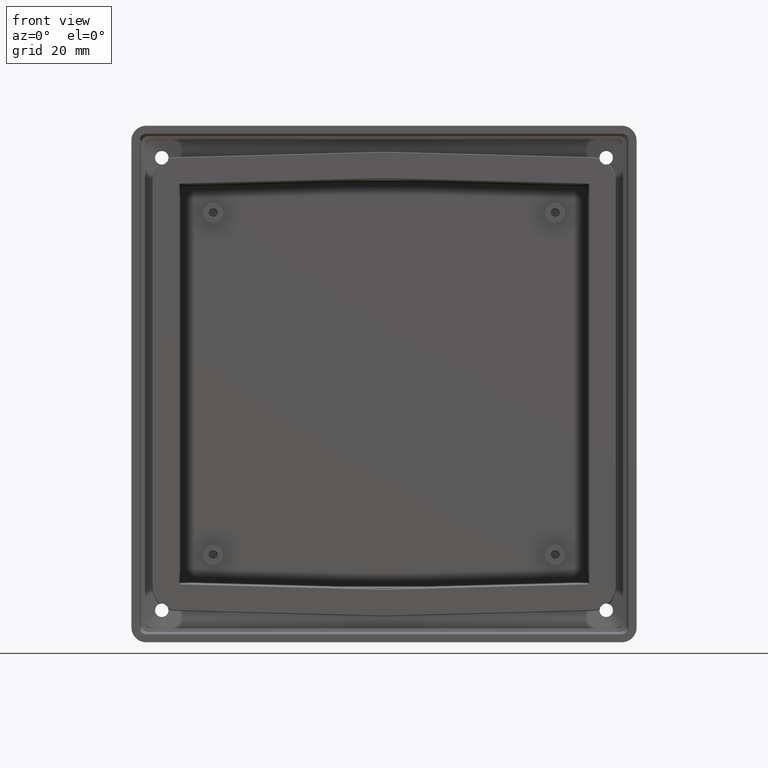
[diagram: clean part render]
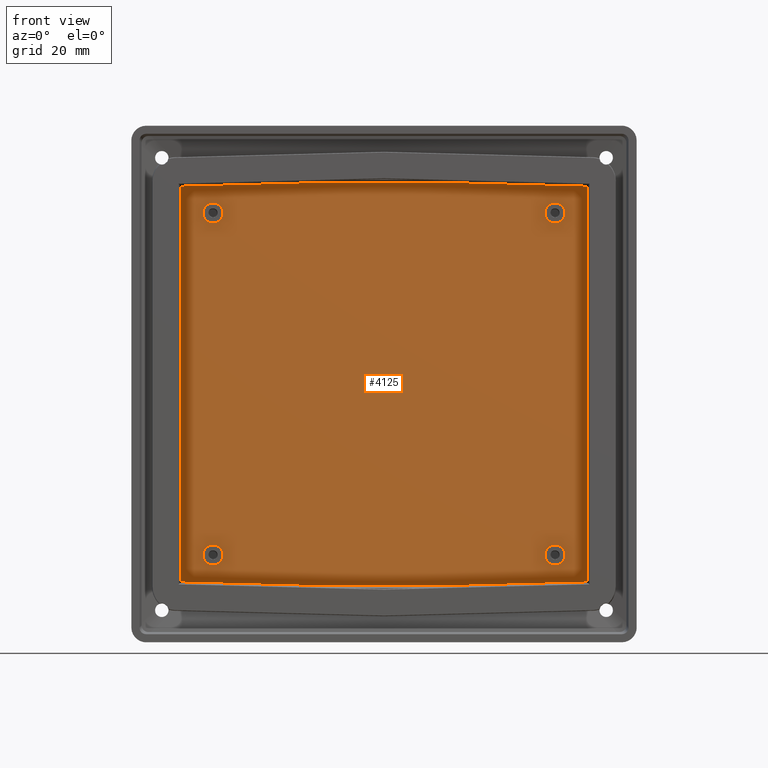
[diagram: same view with one face highlighted and labeled with its STEP entity id]
A machine part, front view. The second image highlights one B-rep face of the part: STEP entity #4125.
In plain terms, the highlighted planar face has unit normal (0, -1, 0).
Its self-contained STEP definition (entity closure, byte-faithful):
#8 = ORIENTED_EDGE ( 'NONE', *, *, #3032, .F. ) ;
#20 = DIRECTION ( 'NONE',  ( 0.0000000000000000000, 0.0000000000000000000, -1.000000000000000000 ) ) ;
#59 = CARTESIAN_POINT ( 'NONE',  ( -75.36701369866008800, 31.00000000000000400, 77.42838905814822700 ) ) ;
#74 = EDGE_CURVE ( 'NONE', #6313, #5284, #1925, .T. ) ;
#112 = LINE ( 'NONE', #5938, #2396 ) ;
#131 = DIRECTION ( 'NONE',  ( 0.0000000000000000000, -1.000000000000000000, 0.0000000000000000000 ) ) ;
#157 = VERTEX_POINT ( 'NONE', #4668 ) ;
#184 = ORIENTED_EDGE ( 'NONE', *, *, #6110, .F. ) ;
#254 = VERTEX_POINT ( 'NONE', #1425 ) ;
#305 = CIRCLE ( 'NONE', #4776, 3.750000000000010200 ) ;
#314 = AXIS2_PLACEMENT_3D ( 'NONE', #5997, #5330, #4675 ) ;
#330 = ORIENTED_EDGE ( 'NONE', *, *, #4950, .T. ) ;
#414 = DIRECTION ( 'NONE',  ( 0.0000000000000000000, -1.000000000000000000, 0.0000000000000000000 ) ) ;
#432 = ORIENTED_EDGE ( 'NONE', *, *, #6243, .F. ) ;
#505 = VERTEX_POINT ( 'NONE', #713 ) ;
#570 = DIRECTION ( 'NONE',  ( 0.9996573249755573700, 0.0000000000000000000, -0.02617694830787225700 ) ) ;
#634 = CARTESIAN_POINT ( 'NONE',  ( -75.29768461834747500, 31.00000000000000400, 73.44724791217352300 ) ) ;
#711 = DIRECTION ( 'NONE',  ( 0.0000000000000000000, -1.000000000000000000, 0.0000000000000000000 ) ) ;
#713 = CARTESIAN_POINT ( 'NONE',  ( 63.49999999999997200, 31.00000000000000400, 67.25000000000000000 ) ) ;
#749 = CARTESIAN_POINT ( 'NONE',  ( 63.49999999999997200, 31.00000000000000400, 59.74999999999999300 ) ) ;
#816 = CARTESIAN_POINT ( 'NONE',  ( -63.49999999999994300, 31.00000000000000400, -63.50000000000001400 ) ) ;
#957 = CARTESIAN_POINT ( 'NONE',  ( -63.50000000000002800, 31.00000000000000400, 63.49999999999997200 ) ) ;
#1075 = EDGE_CURVE ( 'NONE', #1861, #5855, #2239, .T. ) ;
#1079 = AXIS2_PLACEMENT_3D ( 'NONE', #2947, #2289, #1616 ) ;
#1113 = VERTEX_POINT ( 'NONE', #4479 ) ;
#1141 = DIRECTION ( 'NONE',  ( 0.0000000000000000000, -0.0000000000000000000, -1.000000000000000000 ) ) ;
#1244 = CARTESIAN_POINT ( 'NONE',  ( -79.34997340005621400, 31.00000000000000400, -73.34113499596006100 ) ) ;
#1303 = LINE ( 'NONE', #634, #1683 ) ;
#1334 = EDGE_CURVE ( 'NONE', #3534, #5606, #3102, .T. ) ;
#1375 = CIRCLE ( 'NONE', #4176, 3.750000000000003600 ) ;
#1378 = CARTESIAN_POINT ( 'NONE',  ( 63.49999999999997200, 31.00000000000000400, 63.50000000000000000 ) ) ;
#1392 = CIRCLE ( 'NONE', #1079, 3.750000000000003600 ) ;
#1416 = LINE ( 'NONE', #59, #1819 ) ;
#1425 = CARTESIAN_POINT ( 'NONE',  ( 63.49999999999997200, 31.00000000000000400, -59.74999999999999300 ) ) ;
#1479 = CARTESIAN_POINT ( 'NONE',  ( -18.04811854180389100, 31.00000000000000400, 74.94638055932387000 ) ) ;
#1487 = VECTOR ( 'NONE', #570, 1000.000000000000000 ) ;
#1547 = VERTEX_POINT ( 'NONE', #5394 ) ;
#1616 = DIRECTION ( 'NONE',  ( 0.0000000000000000000, 0.0000000000000000000, -1.000000000000000000 ) ) ;
#1683 = VECTOR ( 'NONE', #6432, 1000.000000000000200 ) ;
#1704 = ORIENTED_EDGE ( 'NONE', *, *, #4032, .T. ) ;
#1774 = DIRECTION ( 'NONE',  ( -5.382687926451640800E-015, 0.0000000000000000000, 1.000000000000000000 ) ) ;
#1793 = AXIS2_PLACEMENT_3D ( 'NONE', #3487, #2834, #2172 ) ;
#1819 = VECTOR ( 'NONE', #5886, 1000.000000000000000 ) ;
#1823 = DIRECTION ( 'NONE',  ( 0.0000000000000000000, -1.000000000000000000, 0.0000000000000000000 ) ) ;
#1861 = VERTEX_POINT ( 'NONE', #2079 ) ;
#1894 = EDGE_CURVE ( 'NONE', #5606, #2578, #5861, .T. ) ;
#1925 = LINE ( 'NONE', #1244, #1487 ) ;
#2079 = CARTESIAN_POINT ( 'NONE',  ( -63.50000000000002800, 31.00000000000000400, 59.74999999999996400 ) ) ;
#2104 = DIRECTION ( 'NONE',  ( 0.9996573249755572600, 0.0000000000000000000, 0.02617694830787276100 ) ) ;
#2170 = DIRECTION ( 'NONE',  ( 0.0000000000000000000, 0.0000000000000000000, -1.000000000000000000 ) ) ;
#2172 = DIRECTION ( 'NONE',  ( 0.0000000000000000000, 0.0000000000000000000, -1.000000000000000000 ) ) ;
#2239 = CIRCLE ( 'NONE', #1793, 3.750000000000010200 ) ;
#2289 = DIRECTION ( 'NONE',  ( 0.0000000000000000000, -1.000000000000000000, 0.0000000000000000000 ) ) ;
#2322 = CARTESIAN_POINT ( 'NONE',  ( 18.04811854180372400, 31.00000000000000400, -74.94638055932387000 ) ) ;
#2396 = VECTOR ( 'NONE', #5276, 1000.000000000000000 ) ;
#2442 = CARTESIAN_POINT ( 'NONE',  ( 75.36701369866020200, 31.00000000000000400, 77.42838905814902300 ) ) ;
#2489 = CARTESIAN_POINT ( 'NONE',  ( -75.40193446815182200, 31.00000000000000400, 77.42838905814822700 ) ) ;
#2526 = CIRCLE ( 'NONE', #314, 3.750000000000003600 ) ;
#2578 = VERTEX_POINT ( 'NONE', #6223 ) ;
#2678 = VERTEX_POINT ( 'NONE', #1479 ) ;
#2696 = VECTOR ( 'NONE', #2104, 1000.000000000000200 ) ;
#2752 = CARTESIAN_POINT ( 'NONE',  ( -63.50000000000002800, 31.00000000000000400, 67.24999999999997200 ) ) ;
#2765 = CARTESIAN_POINT ( 'NONE',  ( -71.35055980562087500, 31.00000000000000400, -77.28736733891847200 ) ) ;
#2804 = EDGE_LOOP ( 'NONE', ( #5451, #3733 ) ) ;
#2819 = DIRECTION ( 'NONE',  ( 0.0000000000000000000, 0.0000000000000000000, -1.000000000000000000 ) ) ;
#2831 = CARTESIAN_POINT ( 'NONE',  ( 75.36701369866021600, 31.00000000000000400, 73.44543246631397400 ) ) ;
#2832 = DIRECTION ( 'NONE',  ( 0.0000000000000000000, -1.000000000000000000, 0.0000000000000000000 ) ) ;
#2834 = DIRECTION ( 'NONE',  ( 0.0000000000000000000, -1.000000000000000000, 0.0000000000000000000 ) ) ;
#2947 = CARTESIAN_POINT ( 'NONE',  ( 63.49999999999997200, 31.00000000000000400, -63.50000000000000000 ) ) ;
#3032 = EDGE_CURVE ( 'NONE', #5855, #1861, #305, .T. ) ;
#3102 = LINE ( 'NONE', #2442, #4553 ) ;
#3273 = AXIS2_PLACEMENT_3D ( 'NONE', #3484, #2832, #2170 ) ;
#3308 = EDGE_LOOP ( 'NONE', ( #184, #432 ) ) ;
#3369 = ORIENTED_EDGE ( 'NONE', *, *, #74, .T. ) ;
#3415 = EDGE_CURVE ( 'NONE', #2578, #2678, #112, .T. ) ;
#3418 = LINE ( 'NONE', #2765, #2696 ) ;
#3471 = DIRECTION ( 'NONE',  ( 0.0000000000000000000, -1.000000000000000000, 0.0000000000000000000 ) ) ;
#3484 = CARTESIAN_POINT ( 'NONE',  ( 63.49999999999997200, 31.00000000000000400, 63.50000000000000000 ) ) ;
#3487 = CARTESIAN_POINT ( 'NONE',  ( -63.50000000000002800, 31.00000000000000400, 63.49999999999997200 ) ) ;
#3534 = VERTEX_POINT ( 'NONE', #5667 ) ;
#3616 = EDGE_LOOP ( 'NONE', ( #8, #5826 ) ) ;
#3618 = ORIENTED_EDGE ( 'NONE', *, *, #1334, .T. ) ;
#3658 = AXIS2_PLACEMENT_3D ( 'NONE', #816, #131, #5957 ) ;
#3682 = DIRECTION ( 'NONE',  ( 1.000000000000000000, 0.0000000000000000000, 0.0000000000000000000 ) ) ;
#3685 = FACE_BOUND ( 'NONE', #4917, .T. ) ;
#3733 = ORIENTED_EDGE ( 'NONE', *, *, #4460, .F. ) ;
#3743 = ORIENTED_EDGE ( 'NONE', *, *, #5102, .T. ) ;
#3747 = VECTOR ( 'NONE', #3894, 1000.000000000000200 ) ;
#3894 = DIRECTION ( 'NONE',  ( -0.9996573249755572600, 0.0000000000000000000, 0.02617694830787313500 ) ) ;
#3988 = EDGE_CURVE ( 'NONE', #505, #5101, #6332, .T. ) ;
#4032 = EDGE_CURVE ( 'NONE', #6487, #3534, #3418, .T. ) ;
#4071 = EDGE_CURVE ( 'NONE', #254, #1113, #1375, .T. ) ;
#4117 = EDGE_LOOP ( 'NONE', ( #5064, #6197, #330, #3743, #3369, #5387, #1704, #3618 ) ) ;
#4125 = ADVANCED_FACE ( 'NONE', ( #5488, #3685, #5829, #5998, #6327 ), #4446, .T. ) ;
#4176 = AXIS2_PLACEMENT_3D ( 'NONE', #5729, #414, #6236 ) ;
#4321 = CARTESIAN_POINT ( 'NONE',  ( -75.40193446815182200, 31.00000000000000400, -74.94638055932387000 ) ) ;
#4356 = CARTESIAN_POINT ( 'NONE',  ( -75.36701369866170800, 31.00000000000000400, -73.44543246631398900 ) ) ;
#4446 = PLANE ( 'NONE',  #5664 ) ;
#4460 = EDGE_CURVE ( 'NONE', #1113, #254, #1392, .T. ) ;
#4476 = CARTESIAN_POINT ( 'NONE',  ( -75.36701369866013100, 31.00000000000000400, 73.44543246631398900 ) ) ;
#4479 = CARTESIAN_POINT ( 'NONE',  ( 63.49999999999997200, 31.00000000000000400, -67.25000000000000000 ) ) ;
#4526 = EDGE_CURVE ( 'NONE', #5101, #505, #5364, .T. ) ;
#4547 = CARTESIAN_POINT ( 'NONE',  ( -75.40284858732968600, 31.00000000000000400, 77.39348025513201900 ) ) ;
#4553 = VECTOR ( 'NONE', #1774, 1000.000000000000000 ) ;
#4561 = VERTEX_POINT ( 'NONE', #4476 ) ;
#4668 = CARTESIAN_POINT ( 'NONE',  ( -63.49999999999994300, 31.00000000000000400, -59.75000000000000700 ) ) ;
#4675 = DIRECTION ( 'NONE',  ( 0.0000000000000000000, 0.0000000000000000000, -1.000000000000000000 ) ) ;
#4776 = AXIS2_PLACEMENT_3D ( 'NONE', #957, #3471, #2819 ) ;
#4917 = EDGE_LOOP ( 'NONE', ( #4963, #5051 ) ) ;
#4949 = CARTESIAN_POINT ( 'NONE',  ( -18.04811854180385200, 31.00000000000000400, -74.94638055932387000 ) ) ;
#4950 = EDGE_CURVE ( 'NONE', #2678, #4561, #1303, .T. ) ;
#4963 = ORIENTED_EDGE ( 'NONE', *, *, #3988, .F. ) ;
#5051 = ORIENTED_EDGE ( 'NONE', *, *, #4526, .F. ) ;
#5064 = ORIENTED_EDGE ( 'NONE', *, *, #1894, .T. ) ;
#5101 = VERTEX_POINT ( 'NONE', #749 ) ;
#5102 = EDGE_CURVE ( 'NONE', #4561, #6313, #1416, .T. ) ;
#5276 = DIRECTION ( 'NONE',  ( -1.000000000000000000, 0.0000000000000000000, 0.0000000000000000000 ) ) ;
#5284 = VERTEX_POINT ( 'NONE', #4949 ) ;
#5330 = DIRECTION ( 'NONE',  ( 0.0000000000000000000, -1.000000000000000000, 0.0000000000000000000 ) ) ;
#5364 = CIRCLE ( 'NONE', #3273, 3.750000000000010200 ) ;
#5387 = ORIENTED_EDGE ( 'NONE', *, *, #5705, .T. ) ;
#5394 = CARTESIAN_POINT ( 'NONE',  ( -63.49999999999994300, 31.00000000000000400, -67.25000000000001400 ) ) ;
#5451 = ORIENTED_EDGE ( 'NONE', *, *, #4071, .F. ) ;
#5488 = FACE_BOUND ( 'NONE', #3308, .T. ) ;
#5606 = VERTEX_POINT ( 'NONE', #2831 ) ;
#5643 = LINE ( 'NONE', #4321, #5712 ) ;
#5664 = AXIS2_PLACEMENT_3D ( 'NONE', #2489, #1823, #1141 ) ;
#5667 = CARTESIAN_POINT ( 'NONE',  ( 75.36701369866099800, 31.00000000000000400, -73.44543246631397400 ) ) ;
#5705 = EDGE_CURVE ( 'NONE', #5284, #6487, #5643, .T. ) ;
#5712 = VECTOR ( 'NONE', #3682, 1000.000000000000000 ) ;
#5729 = CARTESIAN_POINT ( 'NONE',  ( 63.49999999999997200, 31.00000000000000400, -63.50000000000000000 ) ) ;
#5826 = ORIENTED_EDGE ( 'NONE', *, *, #1075, .F. ) ;
#5829 = FACE_OUTER_BOUND ( 'NONE', #4117, .T. ) ;
#5855 = VERTEX_POINT ( 'NONE', #2752 ) ;
#5861 = LINE ( 'NONE', #4547, #3747 ) ;
#5886 = DIRECTION ( 'NONE',  ( -1.076537585290327800E-014, 0.0000000000000000000, -1.000000000000000000 ) ) ;
#5938 = CARTESIAN_POINT ( 'NONE',  ( -75.40193446815182200, 31.00000000000000400, 74.94638055932387000 ) ) ;
#5951 = AXIS2_PLACEMENT_3D ( 'NONE', #1378, #711, #20 ) ;
#5957 = DIRECTION ( 'NONE',  ( 0.0000000000000000000, 0.0000000000000000000, -1.000000000000000000 ) ) ;
#5997 = CARTESIAN_POINT ( 'NONE',  ( -63.49999999999994300, 31.00000000000000400, -63.50000000000001400 ) ) ;
#5998 = FACE_BOUND ( 'NONE', #2804, .T. ) ;
#6110 = EDGE_CURVE ( 'NONE', #157, #1547, #6460, .T. ) ;
#6197 = ORIENTED_EDGE ( 'NONE', *, *, #3415, .T. ) ;
#6223 = CARTESIAN_POINT ( 'NONE',  ( 18.04811854180374900, 31.00000000000000400, 74.94638055932387000 ) ) ;
#6236 = DIRECTION ( 'NONE',  ( 0.0000000000000000000, 0.0000000000000000000, -1.000000000000000000 ) ) ;
#6243 = EDGE_CURVE ( 'NONE', #1547, #157, #2526, .T. ) ;
#6313 = VERTEX_POINT ( 'NONE', #4356 ) ;
#6327 = FACE_BOUND ( 'NONE', #3616, .T. ) ;
#6332 = CIRCLE ( 'NONE', #5951, 3.750000000000010200 ) ;
#6432 = DIRECTION ( 'NONE',  ( -0.9996573249755572600, 0.0000000000000000000, -0.02617694830787299600 ) ) ;
#6460 = CIRCLE ( 'NONE', #3658, 3.750000000000003600 ) ;
#6487 = VERTEX_POINT ( 'NONE', #2322 ) ;